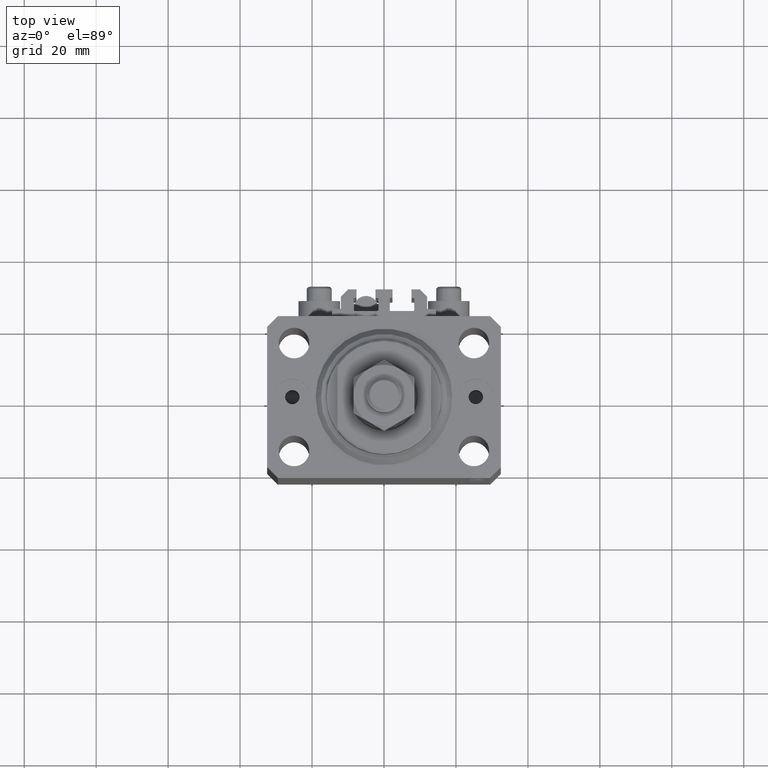
[diagram: clean part render]
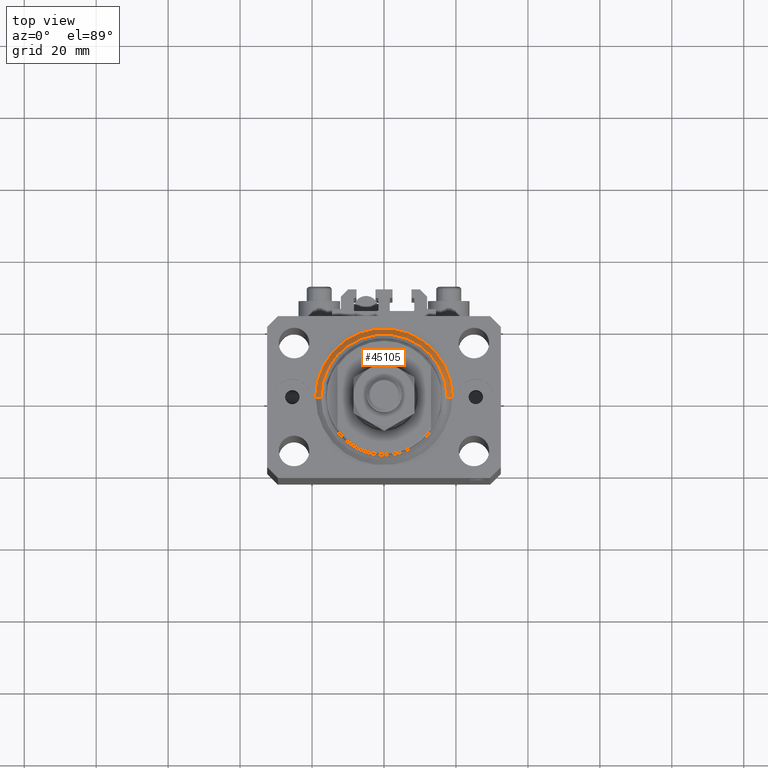
[diagram: same view with one face highlighted and labeled with its STEP entity id]
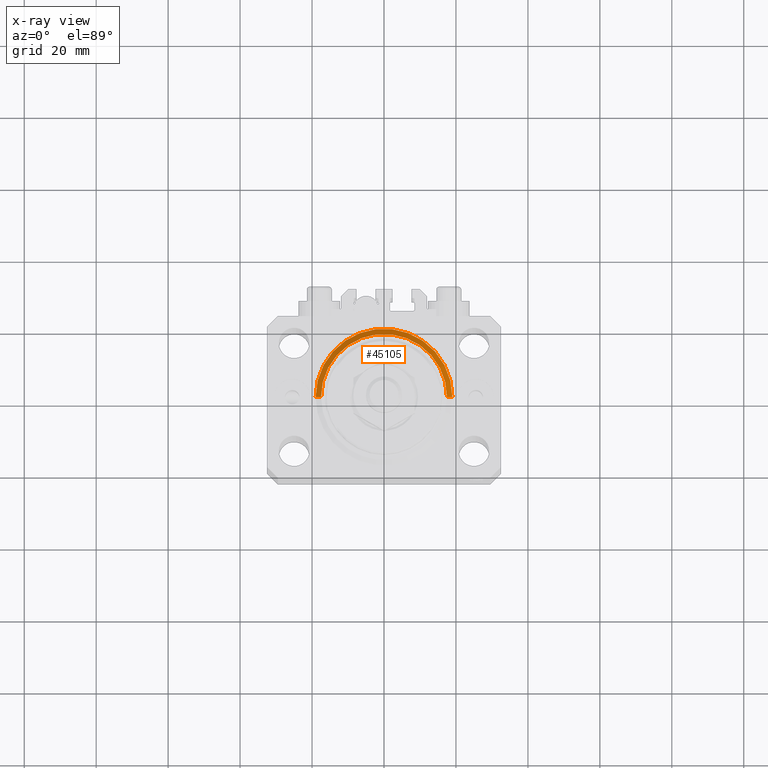
[diagram: x-ray of the same camera — body ghosted, the highlighted face saturated]
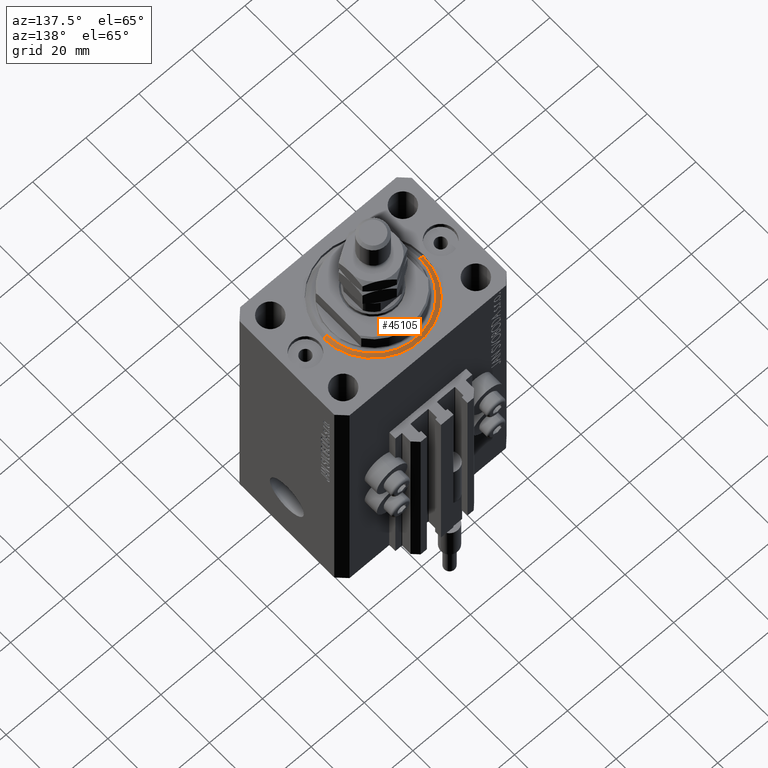
[diagram: same view with one face highlighted and labeled with its STEP entity id]
A machine part, top view. The second image highlights one B-rep face of the part: STEP entity #45105.
The next image is the same camera in x-ray: the body ghosted, the highlighted face saturated — about 0% of this face is hidden behind the body in this view.
A second angle (auxiliary view) of the same face is appended — the face is thin or edge-on in the first view.
In plain terms, the highlighted conical surface has half-angle 45 deg.
Its self-contained STEP definition (entity closure, byte-faithful):
#646 = CARTESIAN_POINT ( 'NONE',  ( -17.49999999999999645, 2.234980408443919215E-15, 0.000000000000000000 ) ) ;
#953 = AXIS2_PLACEMENT_3D ( 'NONE', #36584, #2254, #32814 ) ;
#1112 = AXIS2_PLACEMENT_3D ( 'NONE', #10864, #4075, #22392 ) ;
#2254 = DIRECTION ( 'NONE',  ( -0.000000000000000000, -0.000000000000000000, 1.000000000000000000 ) ) ;
#4075 = DIRECTION ( 'NONE',  ( -0.000000000000000000, -0.000000000000000000, -1.000000000000000000 ) ) ;
#5766 = FACE_OUTER_BOUND ( 'NONE', #17991, .T. ) ;
#7694 = VERTEX_POINT ( 'NONE', #8155 ) ;
#8128 = EDGE_CURVE ( 'NONE', #25053, #39531, #17106, .T. ) ;
#8155 = CARTESIAN_POINT ( 'NONE',  ( 19.00000000000000000, 2.326828918379970970E-15, 1.500000000000001332 ) ) ;
#9280 = CARTESIAN_POINT ( 'NONE',  ( 0.000000000000000000, 0.000000000000000000, 1.500000000000001332 ) ) ;
#9657 = CONICAL_SURFACE ( 'NONE', #16041, 19.00000000000000000, 0.7853981633974492782 ) ;
#10864 = CARTESIAN_POINT ( 'NONE',  ( 0.000000000000000000, 0.000000000000000000, 0.000000000000000000 ) ) ;
#12141 = CIRCLE ( 'NONE', #953, 19.00000000000000000 ) ;
#16041 = AXIS2_PLACEMENT_3D ( 'NONE', #9280, #18428, #36327 ) ;
#16916 = EDGE_CURVE ( 'NONE', #39531, #7694, #32589, .T. ) ;
#17106 = CIRCLE ( 'NONE', #1112, 17.49999999999999645 ) ;
#17991 = EDGE_LOOP ( 'NONE', ( #29776, #25042, #23593, #42042 ) ) ;
#18428 = DIRECTION ( 'NONE',  ( -0.000000000000000000, -0.000000000000000000, 1.000000000000000000 ) ) ;
#19323 = DIRECTION ( 'NONE',  ( -0.7071067811865483499, 8.659560562354942719E-17, 0.7071067811865467956 ) ) ;
#22392 = DIRECTION ( 'NONE',  ( 1.000000000000000000, 0.000000000000000000, 0.000000000000000000 ) ) ;
#23198 = VECTOR ( 'NONE', #19323, 1000.000000000000000 ) ;
#23593 = ORIENTED_EDGE ( 'NONE', *, *, #49296, .F. ) ;
#25042 = ORIENTED_EDGE ( 'NONE', *, *, #44276, .T. ) ;
#25053 = VERTEX_POINT ( 'NONE', #646 ) ;
#27100 = CARTESIAN_POINT ( 'NONE',  ( -19.00000000000000000, 0.000000000000000000, 1.500000000000001332 ) ) ;
#27104 = CARTESIAN_POINT ( 'NONE',  ( -19.00000000000000000, 2.326828918379970970E-15, 1.500000000000001332 ) ) ;
#27611 = LINE ( 'NONE', #27104, #23198 ) ;
#29342 = DIRECTION ( 'NONE',  ( 0.7071067811865483499, 0.000000000000000000, 0.7071067811865467956 ) ) ;
#29776 = ORIENTED_EDGE ( 'NONE', *, *, #8128, .F. ) ;
#32589 = LINE ( 'NONE', #47885, #37936 ) ;
#32814 = DIRECTION ( 'NONE',  ( 1.000000000000000000, 0.000000000000000000, 0.000000000000000000 ) ) ;
#36327 = DIRECTION ( 'NONE',  ( 1.000000000000000000, 0.000000000000000000, 0.000000000000000000 ) ) ;
#36584 = CARTESIAN_POINT ( 'NONE',  ( 0.000000000000000000, 0.000000000000000000, 1.500000000000001332 ) ) ;
#37936 = VECTOR ( 'NONE', #29342, 1000.000000000000000 ) ;
#38910 = VERTEX_POINT ( 'NONE', #27100 ) ;
#39531 = VERTEX_POINT ( 'NONE', #40240 ) ;
#40240 = CARTESIAN_POINT ( 'NONE',  ( 17.49999999999999645, 0.000000000000000000, 0.000000000000000000 ) ) ;
#42042 = ORIENTED_EDGE ( 'NONE', *, *, #16916, .F. ) ;
#44276 = EDGE_CURVE ( 'NONE', #25053, #38910, #27611, .T. ) ;
#45105 = ADVANCED_FACE ( 'NONE', ( #5766 ), #9657, .T. ) ;
#47885 = CARTESIAN_POINT ( 'NONE',  ( 19.00000000000000000, 0.000000000000000000, 1.500000000000001332 ) ) ;
#49296 = EDGE_CURVE ( 'NONE', #7694, #38910, #12141, .T. ) ;